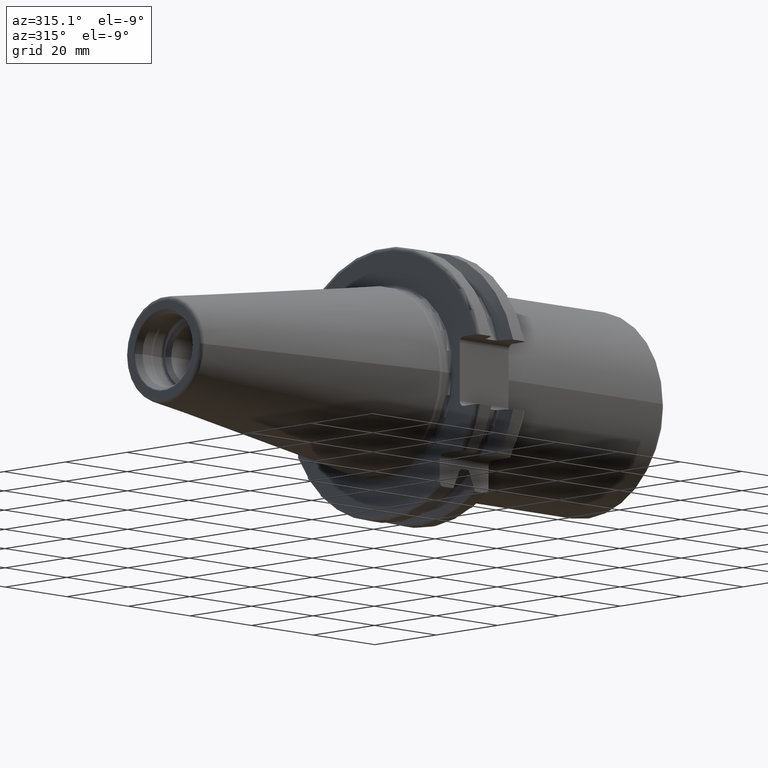
[diagram: clean part render]
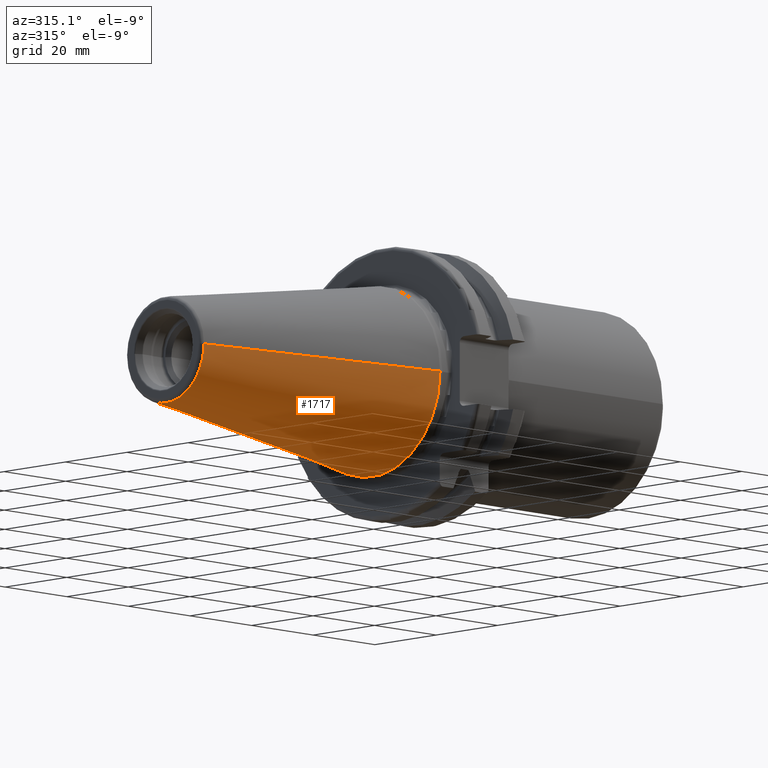
[diagram: same view with one face highlighted and labeled with its STEP entity id]
A machine part, auxiliary view. The second image highlights one B-rep face of the part: STEP entity #1717.
In plain terms, the highlighted conical surface has half-angle 8.298 deg.
Its self-contained STEP definition (entity closure, byte-faithful):
#32=CARTESIAN_POINT('',(-6.743710273571E1,0.E0,0.E0));
#33=DIRECTION('',(-1.E0,0.E0,0.E0));
#34=DIRECTION('',(0.E0,1.E0,0.E0));
#35=AXIS2_PLACEMENT_3D('',#32,#33,#34);
#47=DIRECTION('',(-9.895312636440E-1,-1.443186691705E-1,0.E0));
#48=VECTOR('',#47,6.765568998391E1);
#49=CARTESIAN_POINT('',(-4.896823332305E-1,2.215358204157E1,0.E0));
#50=LINE('',#49,#48);
#51=DIRECTION('',(-9.895312636440E-1,1.443186691705E-1,0.E0));
#52=VECTOR('',#51,6.765568998391E1);
#53=CARTESIAN_POINT('',(-4.896823332305E-1,-2.215358204157E1,0.E0));
#54=LINE('',#53,#52);
#55=CARTESIAN_POINT('',(-4.896823332305E-1,0.E0,0.E0));
#56=DIRECTION('',(-1.E0,0.E0,0.E0));
#57=DIRECTION('',(0.E0,1.E0,0.E0));
#58=AXIS2_PLACEMENT_3D('',#55,#56,#57);
#1364=CARTESIAN_POINT('',(-6.743710273571E1,1.238960290128E1,0.E0));
#1366=VERTEX_POINT('',#1364);
#1368=CARTESIAN_POINT('',(-6.743710273571E1,-1.238960290128E1,0.E0));
#1370=VERTEX_POINT('',#1368);
#1432=CARTESIAN_POINT('',(-4.896823332305E-1,2.215358204157E1,0.E0));
#1433=VERTEX_POINT('',#1432);
#1434=CARTESIAN_POINT('',(-4.896823332305E-1,-2.215358204157E1,0.E0));
#1435=VERTEX_POINT('',#1434);
#1705=CARTESIAN_POINT('',(-3.396339253447E1,0.E0,0.E0));
#1706=DIRECTION('',(1.E0,0.E0,0.E0));
#1707=DIRECTION('',(0.E0,-1.E0,0.E0));
#1708=AXIS2_PLACEMENT_3D('',#1705,#1706,#1707);
#1709=CONICAL_SURFACE('',#1708,1.727159247143E1,8.297826828206E0);
#1710=ORIENTED_EDGE('',*,*,#1695,.T.);
#1711=ORIENTED_EDGE('',*,*,#1672,.T.);
#1712=ORIENTED_EDGE('',*,*,#1699,.F.);
#1714=ORIENTED_EDGE('',*,*,#1713,.F.);
#1715=EDGE_LOOP('',(#1710,#1711,#1712,#1714));
#1716=FACE_OUTER_BOUND('',#1715,.F.);
#1717=ADVANCED_FACE('',(#1716),#1709,.T.);
#36=CIRCLE('',#35,1.238960290128E1);
#59=CIRCLE('',#58,2.215358204157E1);
#1672=EDGE_CURVE('',#1366,#1370,#36,.T.);
#1695=EDGE_CURVE('',#1433,#1366,#50,.T.);
#1699=EDGE_CURVE('',#1435,#1370,#54,.T.);
#1713=EDGE_CURVE('',#1433,#1435,#59,.T.);